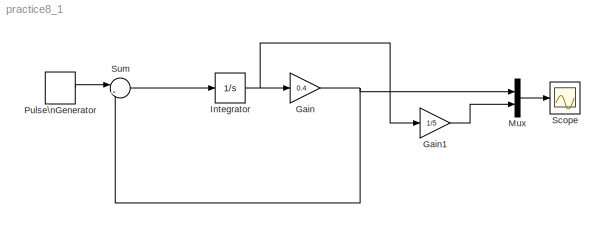
MODEL practice8_1
KIND model
BLOCK [Gain] Gain
  Gain = 0.4
  OutDataTypeStr = Inherit: Inherit via internal rule
  ParamDataTypeStr = Inherit: Inherit via internal rule
  SID = 4
  SaturateOnIntegerOverflow = off
BLOCK [Gain] Gain1
  Gain = 1/5
  OutDataTypeStr = Inherit: Inherit via internal rule
  ParamDataTypeStr = Inherit: Inherit via internal rule
  SID = 6
  SaturateOnIntegerOverflow = off
BLOCK [Integrator] Integrator
  Ports = [1, 1]
  SID = 2
BLOCK [Mux] Mux
  DisplayOption = bar
  Inputs = 2
  Ports = [2, 1]
  SID = 7
BLOCK [DiscretePulseGenerator] Pulse\nGenerator
  Amplitude = 400/0.07
  Period = 7
  Ports = [0, 1]
  PulseType = Time based
  SID = 1
BLOCK [Scope] Scope
  DataFormat = StructureWithTime
  Floating = off
  NumInputPorts = 1
  Ports = [1]
  SID = 5
  SampleTime = 0
  SaveToWorkspace = on
  ShowLegends = off
BLOCK [Sum] Sum
  IconShape = round
  InputSameDT = off
  Inputs = |+-
  OutDataTypeStr = Inherit: Inherit via internal rule
  Ports = [2, 1]
  SID = 3
  SaturateOnIntegerOverflow = off
LINE Gain1:1 -> Mux:2
NET Gain:1 -> Mux:1, Sum:2
NET Integrator:1 -> Gain1:1, Gain:1
LINE Mux:1 -> Scope:1
LINE Pulse\nGenerator:1 -> Sum:1
LINE Sum:1 -> Integrator:1
note: NET lines group one-source signal fan-out (src -> all destinations, sorted); 1:1 wires keep LINE
